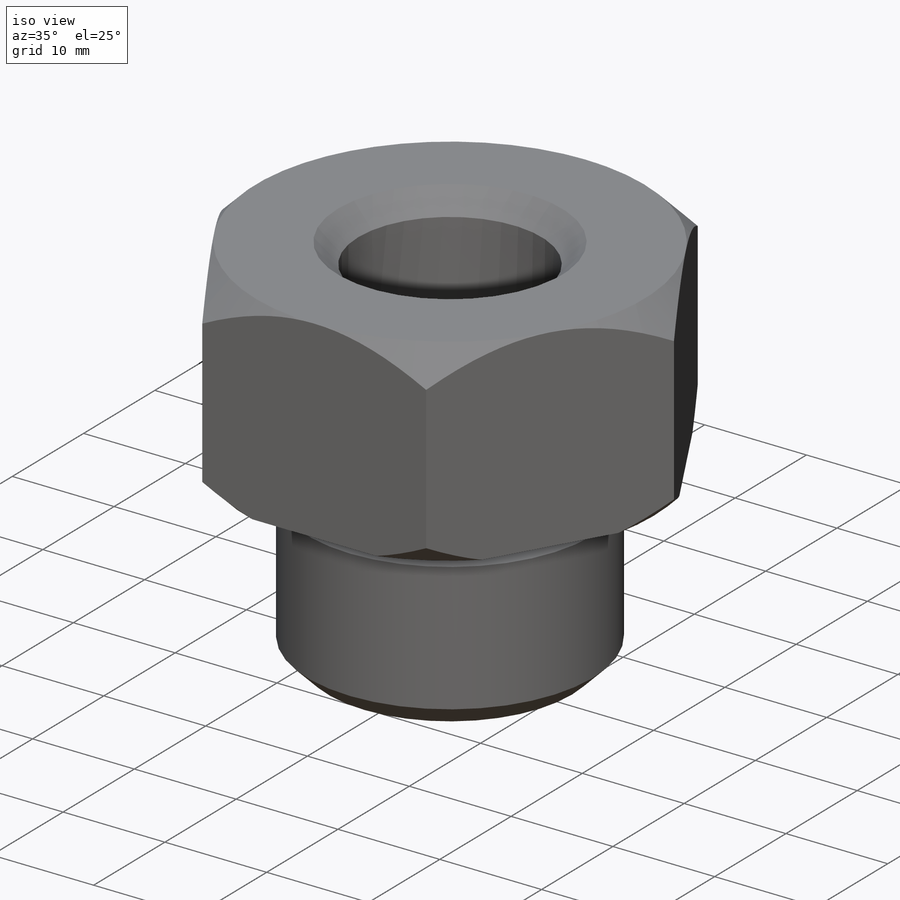
[diagram: iso view]
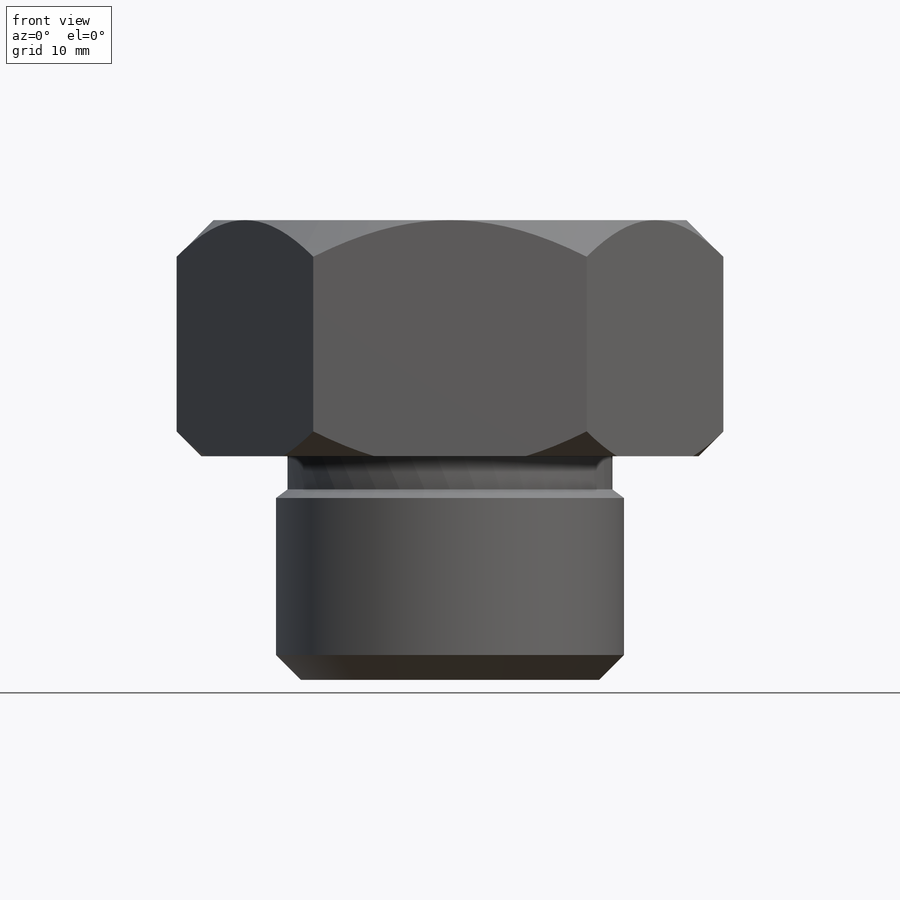
[diagram: front view]
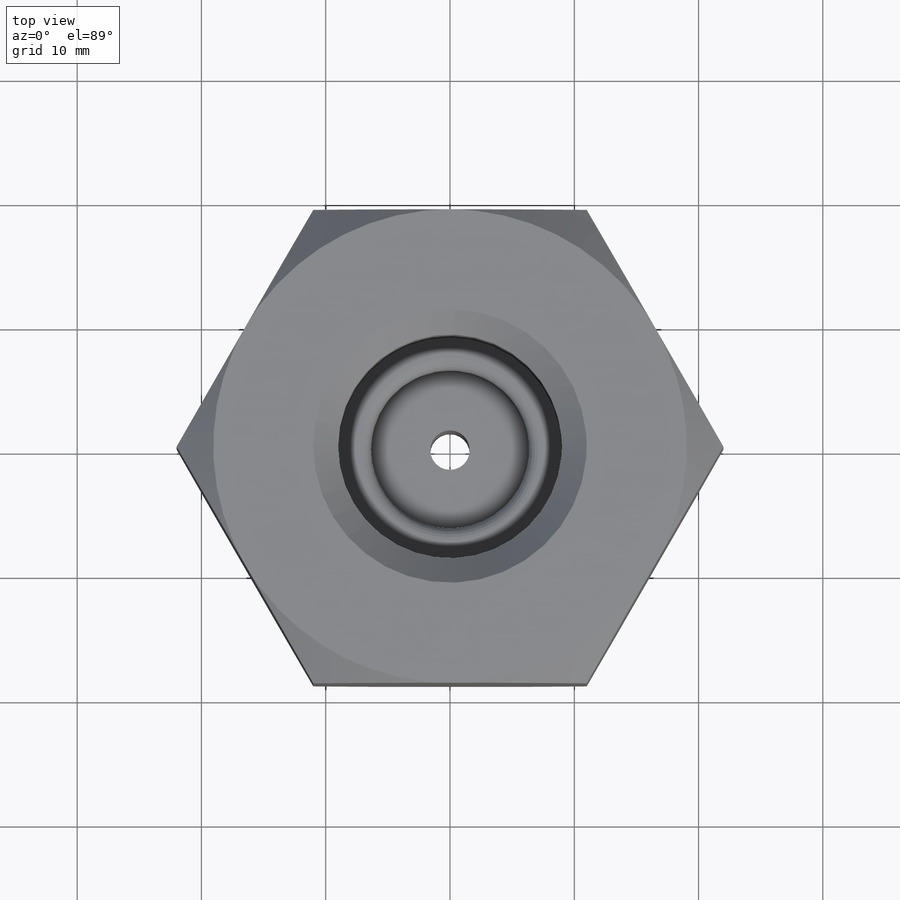
[diagram: top view]
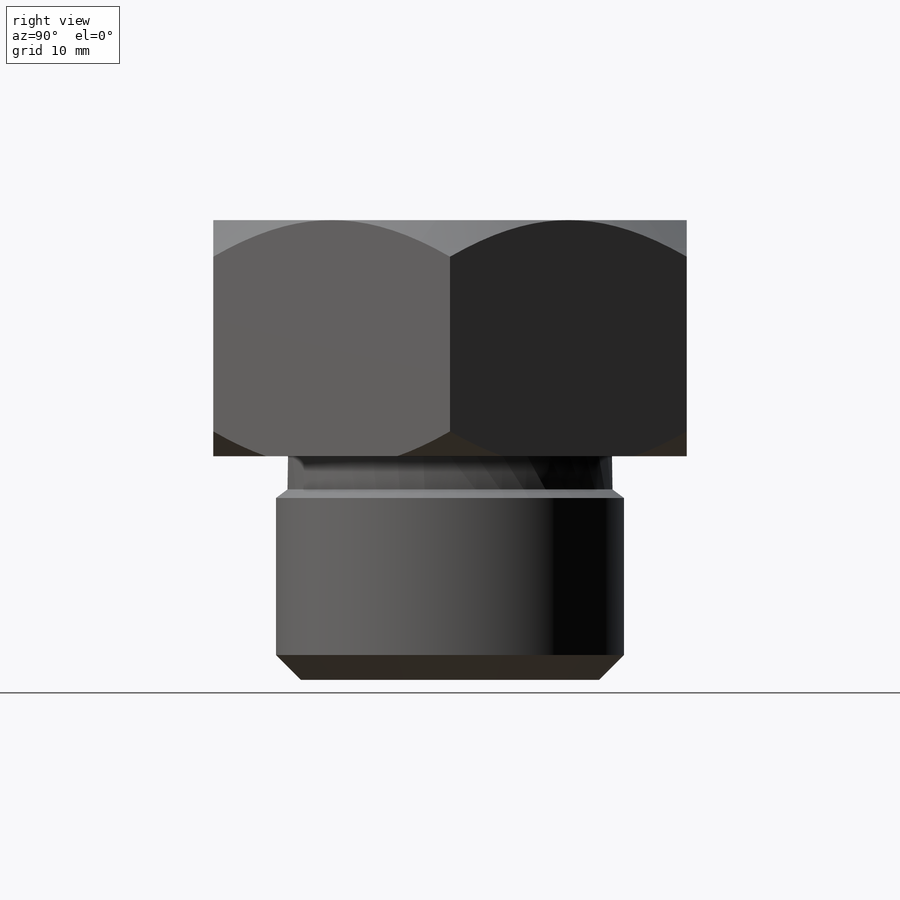
[diagram: right view]
SOLIDWORKS PART (.sldprt)
format: sldprt  version: not decoded by parser v0  size: 244,224 bytes
history: native  units: mm
features: sketch x4, plane x3, cut_extrude x3, material x1, revolve x1, chamfer x1, fillet x1 (+10 scaffold rows collapsed)
feature tree (24):
  scaffold x10  (default folders/planes/origin — collapsed)
  material  "Material <sin especificar>"
  plane  "Alzado"
  plane  "Planta"
  plane  "Vista lateral"
  sketch  "Croquis1"  dims[c1.D1=14.0mm c1.D2=22.0mm c1.D6=18.0mm c1.D7=15.0mm c1.D8=1.5mm c1.D9=22.0mm c1.D10=26.0mm c2.D8=1.5875mm c2.D10=6.35mm c2.D11=19.0mm]
  revolve  "Revolución1"  Angle=360deg
  sketch  "Croquis4"
  cut_extrude  "Cortar-Extruir6"  Depth=70mm
  sketch  "Croquis5"
  cut_extrude  "Cortar-Extruir7"  Depth=70mm
  sketch  "Croquis6"  dims[D1=18.0mm]
  cut_extrude  "Cortar-Extruir8"  Depth=15mm
  chamfer  "Chaflán1"  Distance=2mm Angle=45deg
  fillet  "Redondeo1"  Radius=1mm
decode coverage: 8 of 10 modeling features carry decoded parameters
note: suppression state not decoded; provenance and decode notes live in map.json
